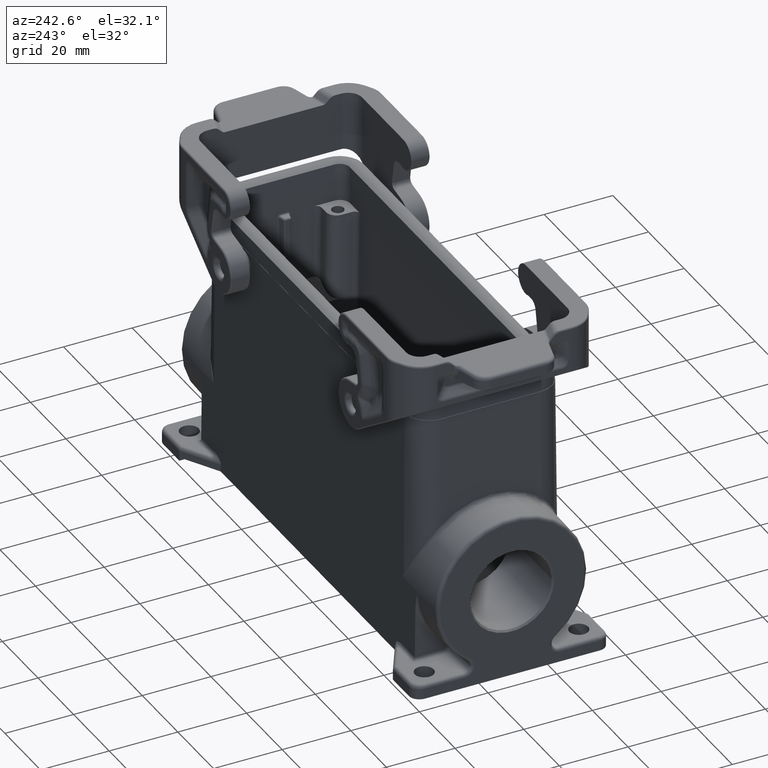
[diagram: clean part render]
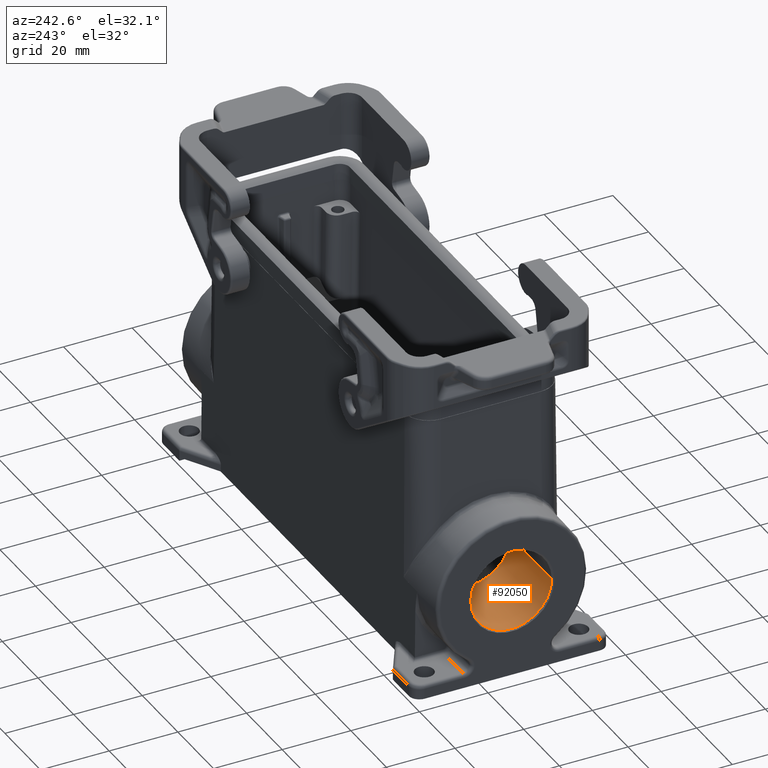
[diagram: same view with one face highlighted and labeled with its STEP entity id]
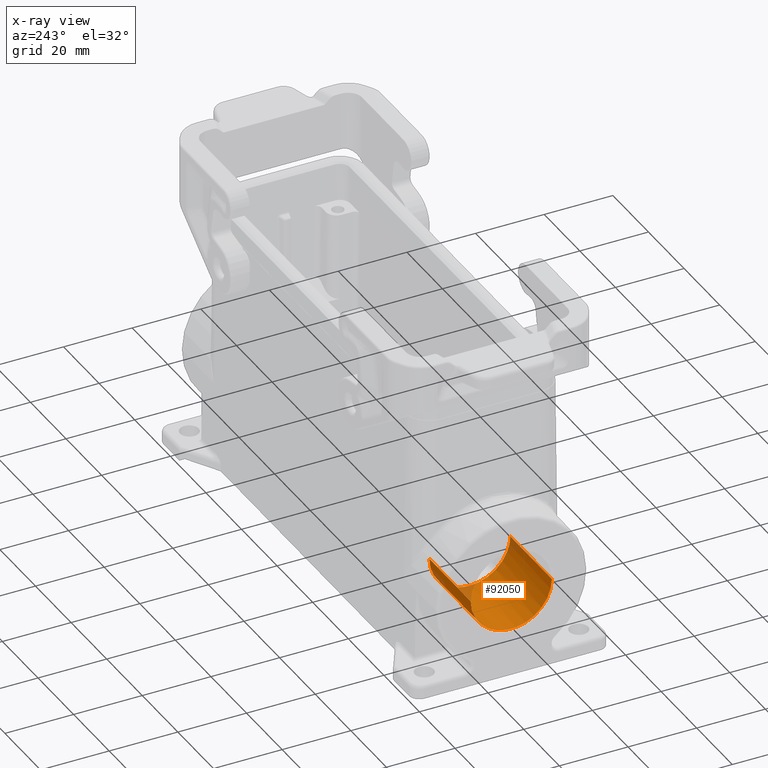
[diagram: x-ray of the same camera — body ghosted, the highlighted face saturated]
A machine part, auxiliary view. The second image highlights one B-rep face of the part: STEP entity #92050.
The next image is the same camera in x-ray: the body ghosted, the highlighted face saturated — about 6% of this face is hidden behind the body in this view.
In plain terms, the highlighted cylindrical surface (partial cylindrical patch) has radius 11.8 mm, axis along (1, -0, 0).
Its self-contained STEP definition (entity closure, byte-faithful):
#37940=CARTESIAN_POINT('',(108.556104514743,40.20508,24.5));
#37950=DIRECTION('',(0.999729241314835,2.84962458202103E-18,
-0.0232689505578674));
#37960=DIRECTION('',(-0.0232689505578674,1.22431521538998E-16,
-0.999729241314835));
#37970=AXIS2_PLACEMENT_3D('',#37940,#37950,#37960);
#37980=ELLIPSE('',#37970,11.8031958177804,11.8);
#37990=CARTESIAN_POINT('',(108.556104514743,52.00508,24.5));
#38000=VERTEX_POINT('',#37990);
#38010=CARTESIAN_POINT('',(108.556104514743,28.40508,24.5));
#38020=VERTEX_POINT('',#38010);
#38050=CARTESIAN_POINT('',(108.281456534834,40.20508,12.7));
#38060=VERTEX_POINT('',#38050);
#38070=EDGE_CURVE('',#38060,#38000,#37980,.T.);
#38090=EDGE_CURVE('',#38020,#38060,#37980,.T.);
#91730=CARTESIAN_POINT('',(132.318578,40.20508,24.5));
#91740=DIRECTION('',(-1.,0.,0.));
#91750=DIRECTION('',(0.,1.,2.44929359829471E-16));
#91760=AXIS2_PLACEMENT_3D('',#91730,#91740,#91750);
#91770=CYLINDRICAL_SURFACE('',#91760,11.8);
#91780=CARTESIAN_POINT('',(132.318578,28.40508,24.5));
#91790=DIRECTION('',(-1.,0.,0.));
#91800=VECTOR('',#91790,1.);
#91810=LINE('',#91780,#91800);
#91820=CARTESIAN_POINT('',(131.818578,28.40508,24.5));
#91830=VERTEX_POINT('',#91820);
#91840=EDGE_CURVE('',#91830,#38020,#91810,.T.);
#91850=ORIENTED_EDGE('',*,*,#91840,.F.);
#91860=ORIENTED_EDGE('',*,*,#38090,.F.);
#91870=ORIENTED_EDGE('',*,*,#38070,.F.);
#91880=CARTESIAN_POINT('',(132.318578,52.00508,24.5));
#91890=DIRECTION('',(-1.,0.,0.));
#91900=VECTOR('',#91890,1.);
#91910=LINE('',#91880,#91900);
#91920=CARTESIAN_POINT('',(131.818578,52.00508,24.5));
#91930=VERTEX_POINT('',#91920);
#91940=EDGE_CURVE('',#91930,#38000,#91910,.T.);
#91950=ORIENTED_EDGE('',*,*,#91940,.T.);
#91960=CARTESIAN_POINT('',(131.818578,40.20508,24.5));
#91970=DIRECTION('',(1.,0.,0.));
#91980=DIRECTION('',(0.,-1.,0.));
#91990=AXIS2_PLACEMENT_3D('',#91960,#91970,#91980);
#92000=CIRCLE('',#91990,11.8);
#92010=EDGE_CURVE('',#91830,#91930,#92000,.T.);
#92020=ORIENTED_EDGE('',*,*,#92010,.T.);
#92030=EDGE_LOOP('',(#92020,#91950,#91870,#91860,#91850));
#92040=FACE_OUTER_BOUND('',#92030,.T.);
#92050=ADVANCED_FACE('',(#92040),#91770,.F.);